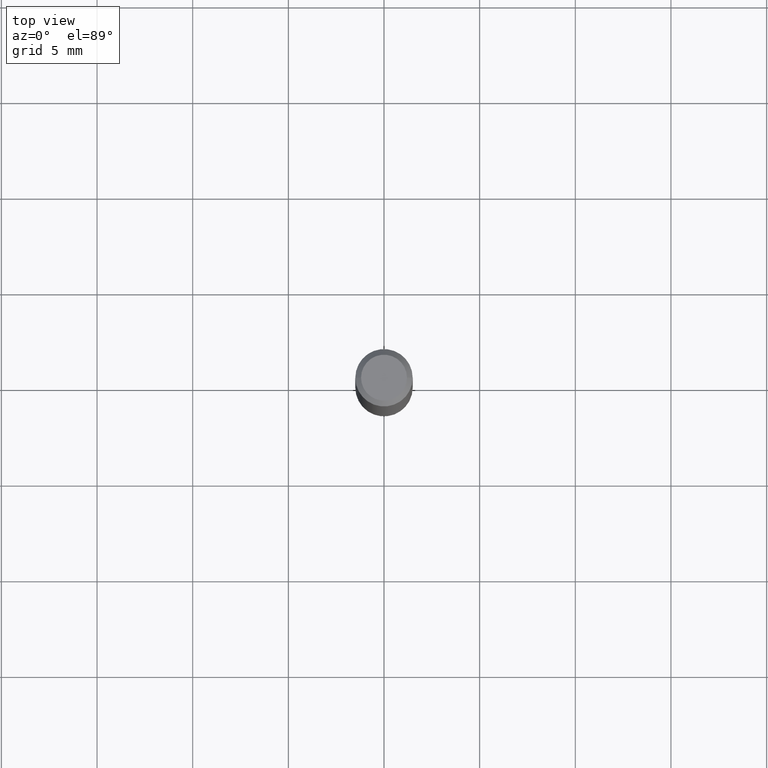
[diagram: clean part render]
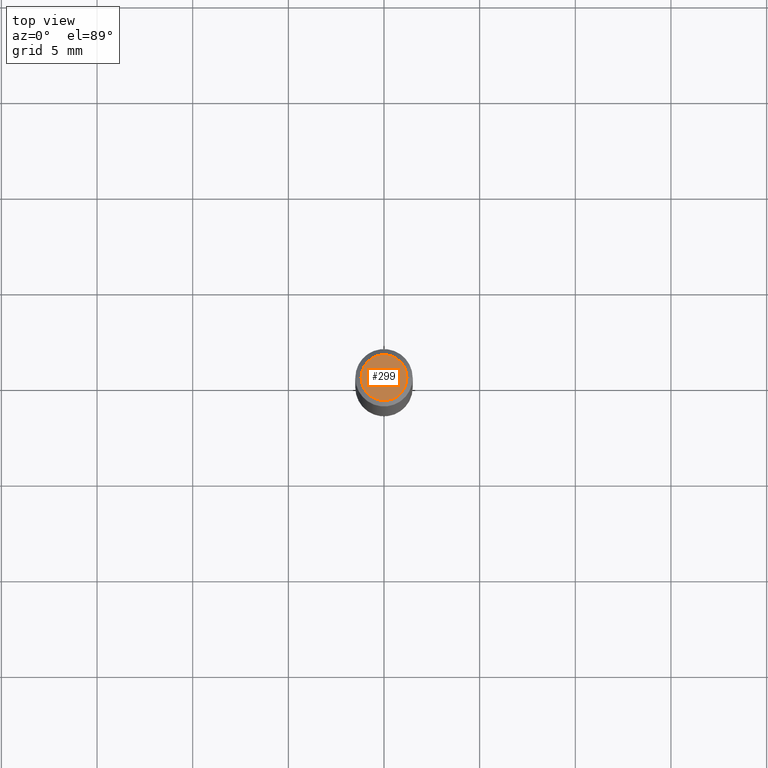
[diagram: same view with one face highlighted and labeled with its STEP entity id]
A machine part, top view. The second image highlights one B-rep face of the part: STEP entity #299.
In plain terms, the highlighted planar face has unit normal (0, -0, -1).
Its self-contained STEP definition (entity closure, byte-faithful):
#42 = DIRECTION ( 'NONE',  ( 2.438088387897960049E-29, -3.491481338843145188E-15, -1.000000000000000000 ) ) ;
#77 = CIRCLE ( 'NONE', #275, 0.04724000000000000421 ) ;
#80 = PLANE ( 'NONE',  #350 ) ;
#89 = DIRECTION ( 'NONE',  ( -2.445468806185136597E-29, 3.491481338843145583E-15, 1.000000000000000000 ) ) ;
#136 = CARTESIAN_POINT ( 'NONE',  ( 8.265746106709734507E-48, -1.180129479067563789E-33, -3.380025165646692144E-19 ) ) ;
#138 = CARTESIAN_POINT ( 'NONE',  ( 8.265746106709734507E-48, -1.180129479067563789E-33, -3.380025165646692144E-19 ) ) ;
#189 = CIRCLE ( 'NONE', #471, 0.04724000000000000421 ) ;
#194 = EDGE_CURVE ( 'NONE', #386, #267, #77, .T. ) ;
#230 = CARTESIAN_POINT ( 'NONE',  ( 0.04724000000000000421, -3.852183633974369345E-16, -3.380025165621689721E-19 ) ) ;
#245 = ORIENTED_EDGE ( 'NONE', *, *, #194, .T. ) ;
#267 = VERTEX_POINT ( 'NONE', #230 ) ;
#275 = AXIS2_PLACEMENT_3D ( 'NONE', #138, #359, #311 ) ;
#286 = EDGE_LOOP ( 'NONE', ( #245, #308 ) ) ;
#299 = ADVANCED_FACE ( 'NONE', ( #418 ), #80, .F. ) ;
#308 = ORIENTED_EDGE ( 'NONE', *, *, #414, .T. ) ;
#311 = DIRECTION ( 'NONE',  ( 1.000000000000000000, -6.982962677686266711E-15, 4.876185090822587894E-29 ) ) ;
#350 = AXIS2_PLACEMENT_3D ( 'NONE', #377, #42, #463 ) ;
#359 = DIRECTION ( 'NONE',  ( -2.445468806185136597E-29, 3.491481338843145583E-15, 1.000000000000000000 ) ) ;
#377 = CARTESIAN_POINT ( 'NONE',  ( 4.132873053354867254E-48, -5.900647395337818946E-34, -1.690012582823346072E-19 ) ) ;
#386 = VERTEX_POINT ( 'NONE', #387 ) ;
#387 = CARTESIAN_POINT ( 'NONE',  ( -0.04724000000000000421, 3.504923541997677355E-16, -3.380025165670481712E-19 ) ) ;
#414 = EDGE_CURVE ( 'NONE', #267, #386, #189, .T. ) ;
#418 = FACE_OUTER_BOUND ( 'NONE', #286, .T. ) ;
#424 = DIRECTION ( 'NONE',  ( 1.000000000000000000, -6.982962677686266711E-15, 4.876185090822587894E-29 ) ) ;
#463 = DIRECTION ( 'NONE',  ( -1.000000000000000000, 6.982962677686265922E-15, -4.876176775795935793E-29 ) ) ;
#471 = AXIS2_PLACEMENT_3D ( 'NONE', #136, #89, #424 ) ;